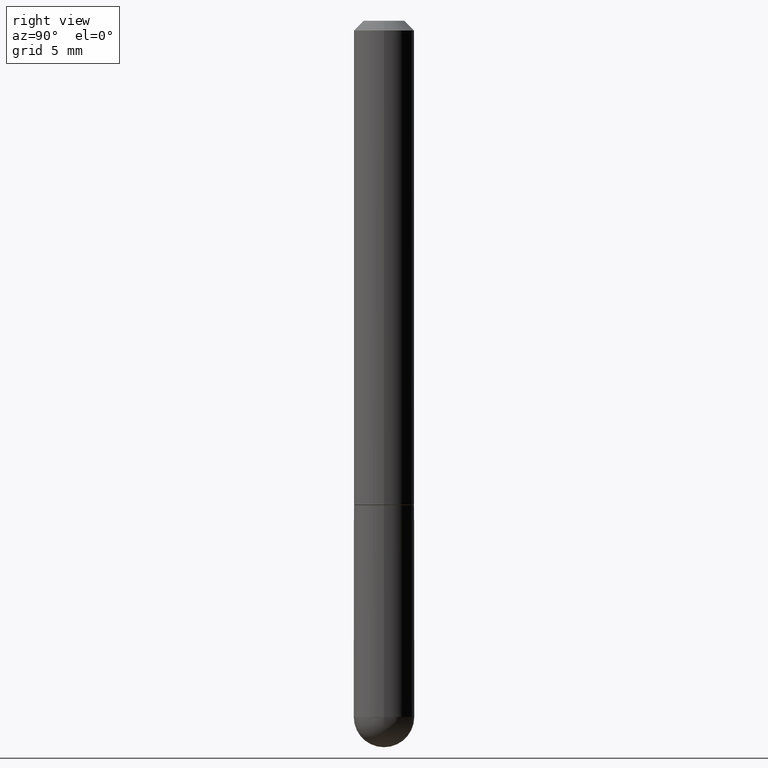
[diagram: clean part render]
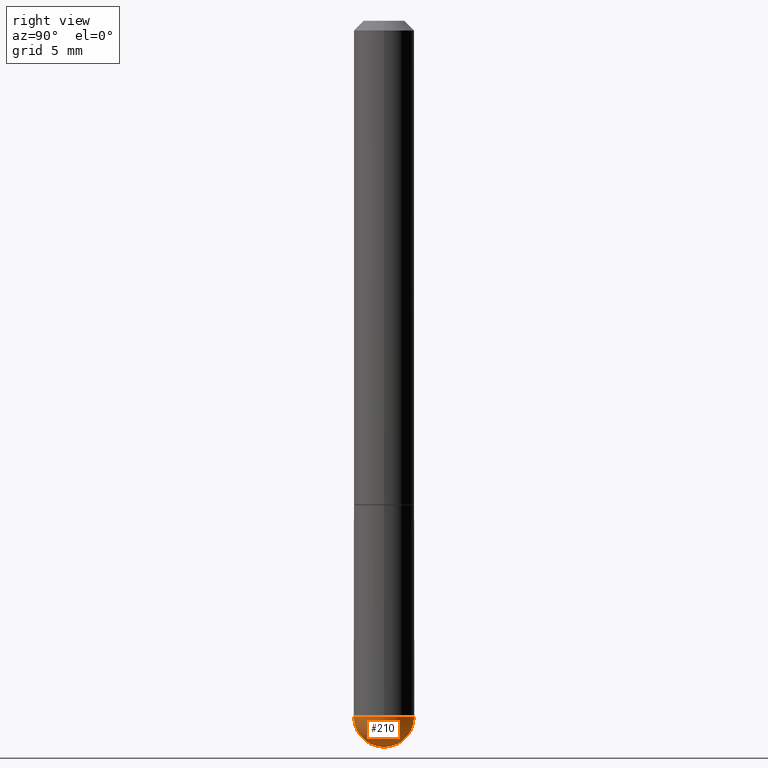
[diagram: same view with one face highlighted and labeled with its STEP entity id]
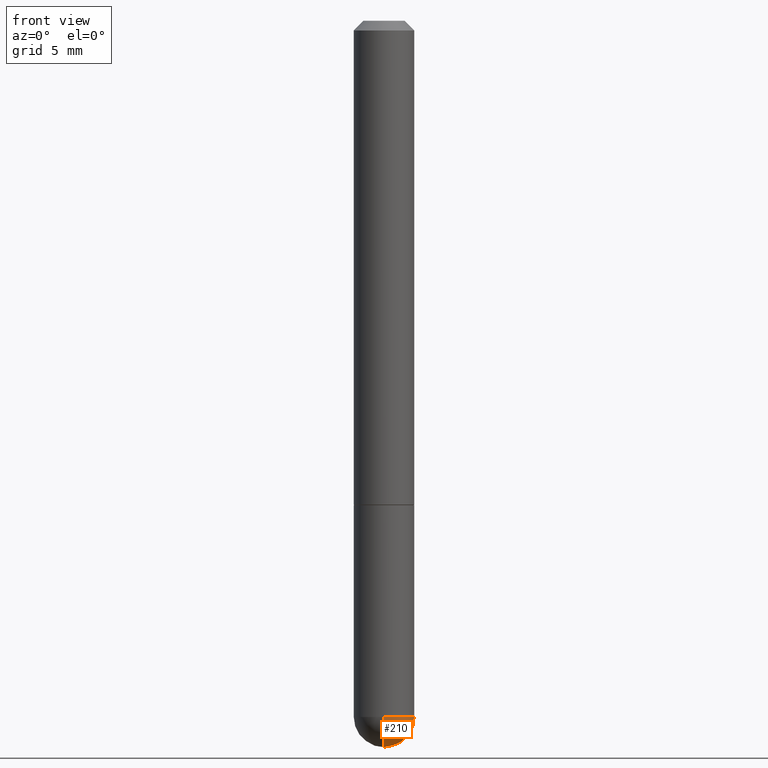
[diagram: same view with one face highlighted and labeled with its STEP entity id]
A machine part, right view. The second image highlights one B-rep face of the part: STEP entity #210.
A second angle (front view) of the same face is appended — the face is thin or edge-on in the first view.
In plain terms, the highlighted spherical surface has radius 1.5875 mm.
Its self-contained STEP definition (entity closure, byte-faithful):
#4 = EDGE_CURVE ( 'NONE', #388, #5, #366, .T. ) ;
#5 = VERTEX_POINT ( 'NONE', #336 ) ;
#11 = EDGE_CURVE ( 'NONE', #197, #173, #402, .T. ) ;
#14 = ORIENTED_EDGE ( 'NONE', *, *, #85, .T. ) ;
#26 = SPHERICAL_SURFACE ( 'NONE', #394, 0.06250000000000018041 ) ;
#38 = AXIS2_PLACEMENT_3D ( 'NONE', #260, #374, #83 ) ;
#68 = ORIENTED_EDGE ( 'NONE', *, *, #4, .F. ) ;
#70 = ORIENTED_EDGE ( 'NONE', *, *, #74, .F. ) ;
#74 = EDGE_CURVE ( 'NONE', #173, #388, #345, .T. ) ;
#76 = AXIS2_PLACEMENT_3D ( 'NONE', #399, #241, #303 ) ;
#83 = DIRECTION ( 'NONE',  ( 6.982962677686266711E-15, 1.000000000000000000, 0.000000000000000000 ) ) ;
#85 = EDGE_CURVE ( 'NONE', #197, #5, #230, .T. ) ;
#87 = AXIS2_PLACEMENT_3D ( 'NONE', #143, #146, #249 ) ;
#91 = DIRECTION ( 'NONE',  ( 6.982962677686265922E-15, 1.000000000000000000, -4.370956789862807739E-15 ) ) ;
#93 = DIRECTION ( 'NONE',  ( 1.000000000000000000, -6.982962677686268288E-15, 0.000000000000000000 ) ) ;
#143 = CARTESIAN_POINT ( 'NONE',  ( 3.515361408891134418E-29, -5.019004424587023131E-15, -1.437500000000000222 ) ) ;
#146 = DIRECTION ( 'NONE',  ( -2.445468806185136597E-29, 3.491481338843145583E-15, 1.000000000000000000 ) ) ;
#173 = VERTEX_POINT ( 'NONE', #225 ) ;
#178 = CARTESIAN_POINT ( 'NONE',  ( 3.515361408891134418E-29, -5.019004424587023131E-15, -1.437500000000000222 ) ) ;
#197 = VERTEX_POINT ( 'NONE', #349 ) ;
#200 = ORIENTED_EDGE ( 'NONE', *, *, #11, .F. ) ;
#201 = CARTESIAN_POINT ( 'NONE',  ( 0.06249999999999995143, -4.691678049070475040E-15, -1.437500000000000222 ) ) ;
#210 = ADVANCED_FACE ( 'NONE', ( #279 ), #26, .T. ) ;
#225 = CARTESIAN_POINT ( 'NONE',  ( -4.440892098500294840E-16, -0.06250000000000532907, -1.437500000000000000 ) ) ;
#230 = CIRCLE ( 'NONE', #38, 0.06250000000000018041 ) ;
#241 = DIRECTION ( 'NONE',  ( -1.000000000000000000, 7.105427357601001070E-15, -4.926315508542082329E-29 ) ) ;
#249 = DIRECTION ( 'NONE',  ( 1.000000000000000000, -6.982962677686268288E-15, 0.000000000000000000 ) ) ;
#251 = EDGE_LOOP ( 'NONE', ( #200, #14, #68, #70 ) ) ;
#260 = CARTESIAN_POINT ( 'NONE',  ( 3.184241630977247611E-29, -5.493186792727071849E-15, -1.437500000000000000 ) ) ;
#279 = FACE_OUTER_BOUND ( 'NONE', #251, .T. ) ;
#297 = DIRECTION ( 'NONE',  ( -2.445468806185136597E-29, 3.491481338843145583E-15, 1.000000000000000000 ) ) ;
#303 = DIRECTION ( 'NONE',  ( -7.105427357601001859E-15, -1.000000000000000000, 0.000000000000000000 ) ) ;
#308 = DIRECTION ( 'NONE',  ( -1.000000000000000000, 6.982962677686265922E-15, -4.883557194083112340E-29 ) ) ;
#336 = CARTESIAN_POINT ( 'NONE',  ( 4.364351673554256397E-16, 0.06249999999999480971, -1.437500000000000444 ) ) ;
#345 = CIRCLE ( 'NONE', #397, 0.06249999999999995143 ) ;
#349 = CARTESIAN_POINT ( 'NONE',  ( 3.339755826017505008E-29, -5.707577355157432999E-15, -1.500000000000000222 ) ) ;
#366 = CIRCLE ( 'NONE', #87, 0.06249999999999995143 ) ;
#374 = DIRECTION ( 'NONE',  ( 1.000000000000000000, -6.982962677686265922E-15, 4.883557194083112340E-29 ) ) ;
#375 = CARTESIAN_POINT ( 'NONE',  ( 3.184241630977247611E-29, -5.493186792727071849E-15, -1.437500000000000000 ) ) ;
#388 = VERTEX_POINT ( 'NONE', #201 ) ;
#394 = AXIS2_PLACEMENT_3D ( 'NONE', #375, #308, #91 ) ;
#397 = AXIS2_PLACEMENT_3D ( 'NONE', #178, #297, #93 ) ;
#399 = CARTESIAN_POINT ( 'NONE',  ( 3.184241630977247611E-29, -5.493186792727071849E-15, -1.437500000000000000 ) ) ;
#402 = CIRCLE ( 'NONE', #76, 0.06250000000000018041 ) ;